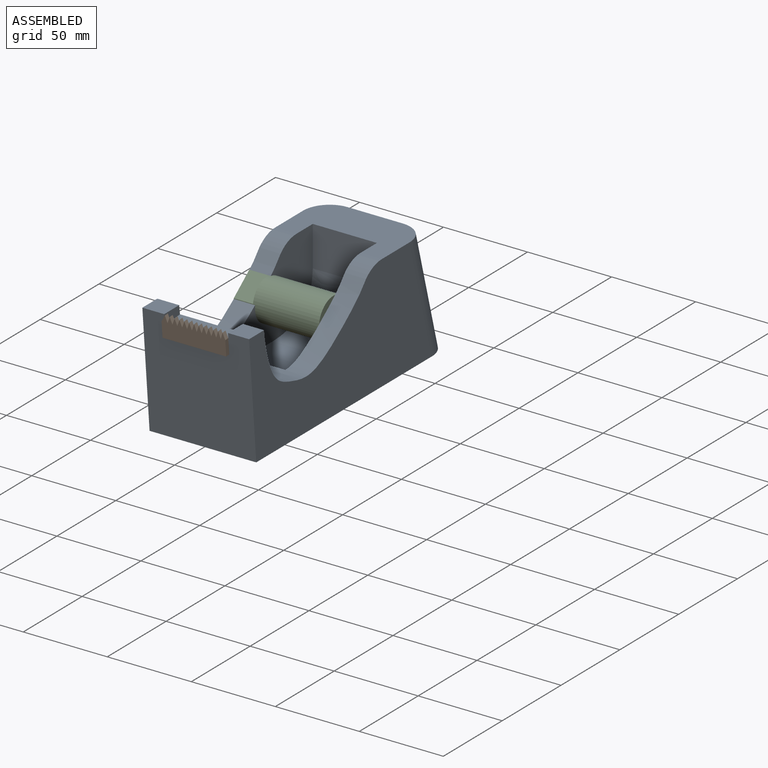
[diagram: assembled view]
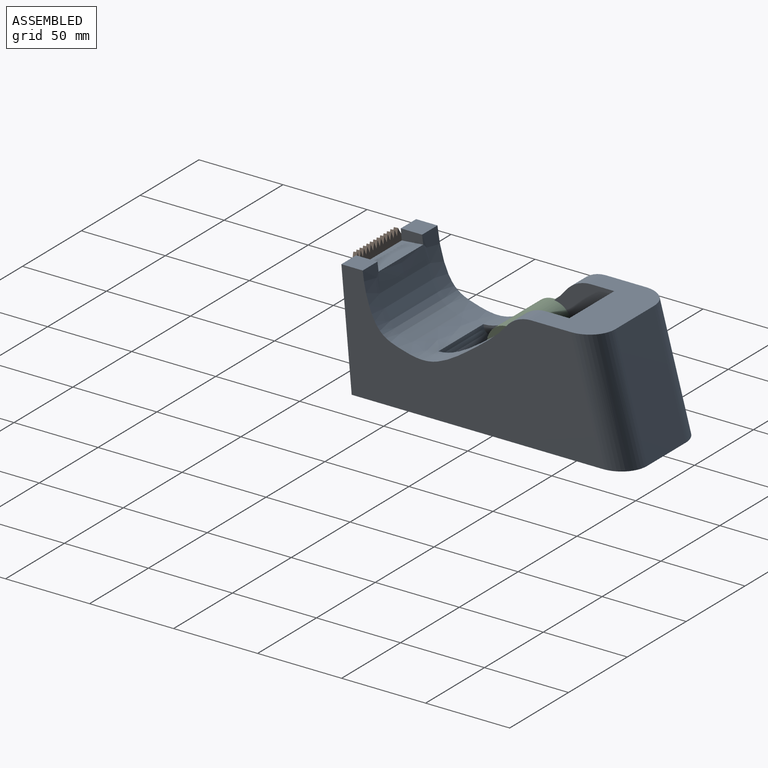
[diagram: assembled view, second angle]
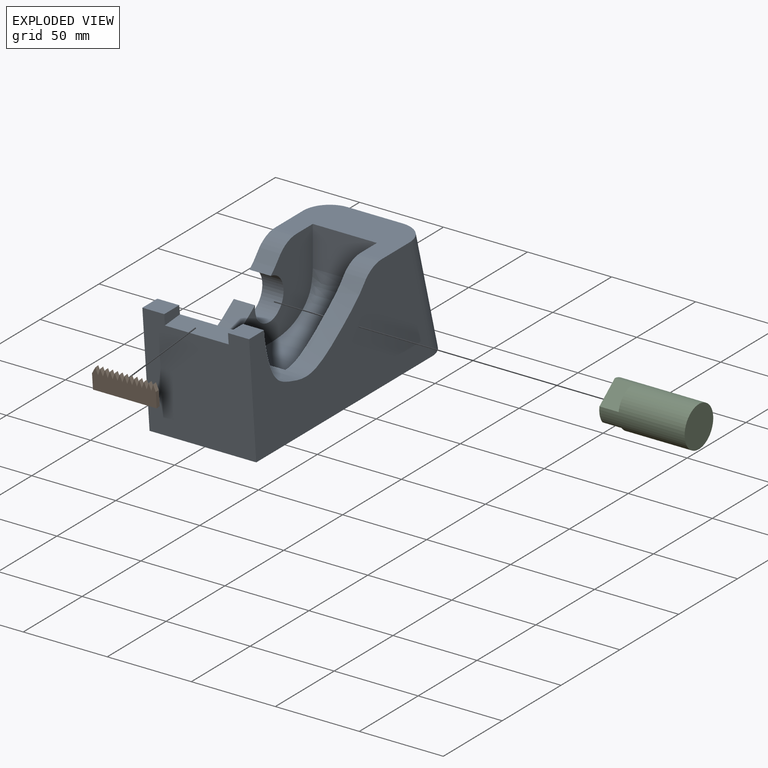
[diagram: exploded view]
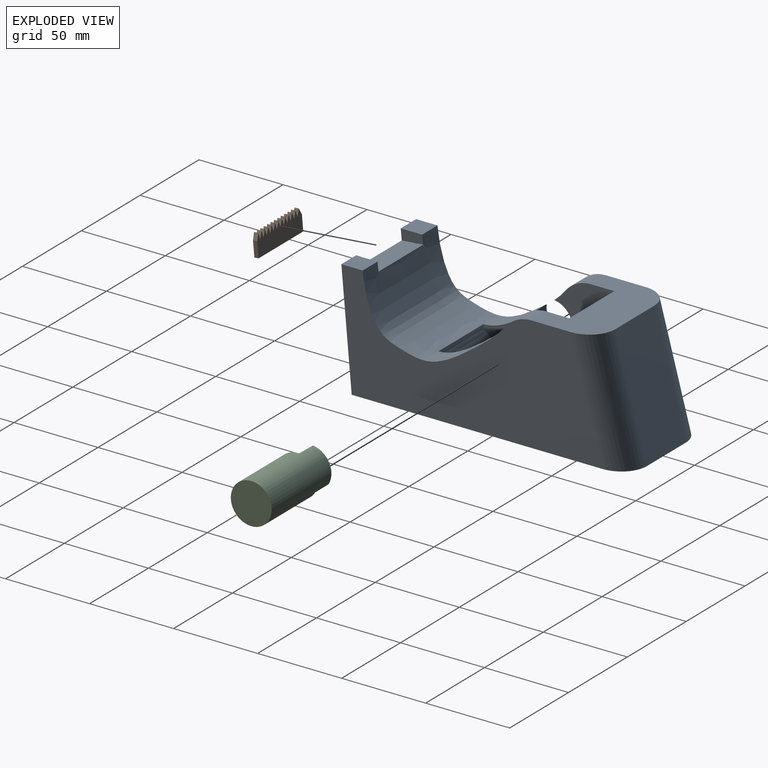
[diagram: exploded view, second angle]
ASSEMBLY  parts=3 mates=2
PART A: 22 faces, bbox 63.5x171.2x76.7 mm
  f0: plane 12.7x12.54mm, normal (0,0,1), area 159.2mm2, adj f2,f5,f9,f20
  f1: plane 155.43x68.58mm, normal (-1,0,0), area 6911.1mm2, adj f2,f3,f4,f6,f8,f9,f10,f12
  f2: extruded ~85.07x63.5mm, area 4759.8mm2, adj f0,f1,f5,f8,f13,f15,f16,f17
  f3: cylinder r=19.05mm len=15.13mm, axis (-1,0,0), area 221.2mm2, adj f1,f4,f12,f16
  f4: plane 63.5x39.5mm, normal (0,0,1), area 1874.6mm2, adj f1,f3,f5,f7,f10,f11,f13,f14
  f5: plane 155.43x68.58mm, normal (1,0,0), area 7334.3mm2, adj f0,f2,f4,f6,f9,f11,f13
  f6: plane 165.1x63.5mm, normal (0,0,-1), area 10380.5mm2, adj f1,f5,f7,f9,f10,f11
  f7: plane 68.58x33.02mm, normal (0,0.96,0.26), area 2348.4mm2, adj f4,f6,f10,f11
  f8: plane 13.02x12.7mm, normal (0,0,1), area 165.4mm2, adj f1,f2,f9,f21
  f9: plane 68.58x63.5mm, normal (0,-1,-0.09), area 4131.4mm2, adj f0,f1,f5,f6,f8,f19,f20,f21
  f10: cylinder r=15.24mm len=76.65mm, axis (0,-0.26,0.96), area 1702.5mm2, adj f1,f4,f6,f7
  f11: cylinder r=15.24mm len=76.65mm, axis (0,0.26,-0.96), area 1702.5mm2, adj f4,f5,f6,f7
  f12: extruded ~12.65x6.9mm, area 121.3mm2, adj f1,f3,f16,f18
  f13: cylinder r=19.05mm len=15.13mm, axis (-1,0,0), area 221.2mm2, adj f2,f4,f5,f15
  f14: plane 38.2x23.92mm, normal (0,-1,0), area 913.7mm2, adj f4,f15,f16,f17
  f15: plane 78.32x50.49mm, normal (-1,0,0), area 2310mm2, adj f2,f4,f13,f14,f17
  f16: plane 78.32x50.49mm, normal (1,0,0), area 1886.6mm2, adj f2,f3,f4,f12,f14,f17,f18
  f17: extruded ~77.91x38.2mm, area 3683.5mm2, adj f2,f14,f15,f16
  f18: cylinder r=12.19mm len=24.38mm, axis (-1,0,0), area 729.2mm2, adj f1,f2,f12,f16
  f19: plane 37.94x12.81mm, normal (0,-0.09,1), area 487.8mm2, adj f2,f9,f20,f21
  f20: plane 13.39x6.32mm, normal (-1,0,0), area 73.5mm2, adj f0,f2,f9,f19
  f21: plane 13.39x6.32mm, normal (1,0,0), area 73.5mm2, adj f2,f8,f9,f19
PART B: 31 faces, bbox 37.9x13.2x3.7 mm
  f0: plane 9.31x3.34mm, normal (1,0,0), area 23.2mm2, adj f1,f28,f29,f30
  f1: plane 37.94x2.53mm, normal (0,1,0.09), area 96.4mm2, adj f0,f2,f29,f30
  f2: plane 9.31x3.34mm, normal (-1,0,0), area 23.2mm2, adj f1,f3,f29,f30
  f3: plane 4.09x2.88mm, normal (-0.87,-0.49,-0.04), area 11.3mm2, adj f2,f4,f29,f30
  f4: plane 4.09x2.88mm, normal (0.94,-0.33,-0.03), area 10.4mm2, adj f3,f5,f29,f30
  f5: plane 4.09x2.88mm, normal (-0.93,-0.36,-0.03), area 10.6mm2, adj f4,f6,f29,f30
  f6: plane 4.09x2.88mm, normal (0.94,-0.33,-0.03), area 10.4mm2, adj f5,f7,f29,f30
  f7: plane 4.09x2.88mm, normal (-0.93,-0.36,-0.03), area 10.6mm2, adj f6,f8,f29,f30
  f8: plane 4.09x2.88mm, normal (0.94,-0.33,-0.03), area 10.4mm2, adj f7,f9,f29,f30
  f9: plane 4.09x2.88mm, normal (-0.93,-0.36,-0.03), area 10.6mm2, adj f8,f10,f29,f30
  f10: plane 4.09x2.88mm, normal (0.94,-0.33,-0.03), area 10.4mm2, adj f9,f11,f29,f30
  f11: plane 4.09x2.88mm, normal (-0.93,-0.36,-0.03), area 10.6mm2, adj f10,f12,f29,f30
  f12: plane 4.09x2.88mm, normal (0.94,-0.33,-0.03), area 10.4mm2, adj f11,f13,f29,f30
  f13: plane 4.09x2.88mm, normal (-0.93,-0.36,-0.03), area 10.6mm2, adj f12,f14,f29,f30
  f14: plane 4.09x2.88mm, normal (0.94,-0.33,-0.03), area 10.4mm2, adj f13,f15,f29,f30
  f15: plane 4.09x2.88mm, normal (-0.93,-0.36,-0.03), area 10.6mm2, adj f14,f16,f29,f30
  f16: plane 4.09x2.88mm, normal (0.94,-0.33,-0.03), area 10.4mm2, adj f15,f17,f29,f30
  f17: plane 4.09x2.88mm, normal (-0.93,-0.36,-0.03), area 10.6mm2, adj f16,f18,f29,f30
  f18: plane 4.09x2.88mm, normal (0.94,-0.33,-0.03), area 10.4mm2, adj f17,f19,f29,f30
  f19: plane 4.09x2.88mm, normal (-0.93,-0.36,-0.03), area 10.6mm2, adj f18,f20,f29,f30
  f20: plane 4.09x2.88mm, normal (0.94,-0.33,-0.03), area 10.4mm2, adj f19,f21,f29,f30
  f21: plane 4.09x2.88mm, normal (-0.93,-0.36,-0.03), area 10.6mm2, adj f20,f22,f29,f30
  f22: plane 4.09x2.88mm, normal (0.94,-0.33,-0.03), area 10.4mm2, adj f21,f23,f29,f30
  f23: plane 4.09x2.88mm, normal (-0.93,-0.36,-0.03), area 10.6mm2, adj f22,f24,f29,f30
  f24: plane 4.09x2.88mm, normal (0.94,-0.33,-0.03), area 10.4mm2, adj f23,f25,f29,f30
  f25: plane 4.09x2.88mm, normal (-0.94,-0.33,-0.03), area 10.4mm2, adj f24,f26,f29,f30
  f26: plane 4.09x2.88mm, normal (0.94,-0.33,-0.03), area 10.4mm2, adj f25,f27,f29,f30
  f27: plane 4.09x2.88mm, normal (-0.95,-0.31,-0.03), area 10.4mm2, adj f26,f28,f29,f30
  f28: plane 4.09x2.88mm, normal (0.94,-0.33,-0.03), area 10.4mm2, adj f0,f27,f29,f30
  f29: plane 37.94x12.95mm, normal (0,-0.09,1), area 419.5mm2, adj f0,f1,f2,f3,f4,f5,f6,f7
  f30: plane 37.94x12.95mm, normal (0,0.09,-1), area 419.5mm2, adj f0,f1,f2,f3,f4,f5,f6,f7
PART C: 8 faces, bbox 50.8x24.3x24.3 mm
  f0: plane 24.29x21.61mm, normal (-1,0,0), area 123.7mm2, adj f2,f4,f6
  f1: plane 13.1x10.3mm, normal (-1,0,0), area 37.6mm2, adj f2,f5
  f2: cylinder r=12.17mm len=50.8mm, axis (1,0,0), area 3126.4mm2, adj f0,f1,f3,f4,f5,f7
  f3: plane 24.34x24.34mm, normal (1,0,0), area 465.2mm2, adj f2
  f4: extruded ~19.9x11.43mm, area 248.7mm2, adj f0,f2,f6,f7
  f5: plane 13.1x11.43mm, normal (0,-0.62,0.79), area 190.1mm2, adj f1,f2,f6,f7
  f6: cylinder r=12.19mm len=18.35mm, axis (1,0,0), area 280.5mm2, adj f0,f4,f5,f7
  f7: plane 24.32x19.79mm, normal (-1,0,0), area 303.9mm2, adj f2,f4,f5,f6
PLACE A t=(2.79,52.68,28.15)mm fixed
PLACE B rot(axis=(-1,0,0),90deg) t=(2.78,-66.01,-31.39)mm
PLACE C t=(2.69,52.52,28.27)mm
MATE fastened A.f9 <-> B.f29  axis (0,-1,-0.09) through (3.03,-35.44,56.12)mm
MATE slider C.f2 <-> A.f18  axis (1,0,0) through (21.79,53.8,35.95)mm
